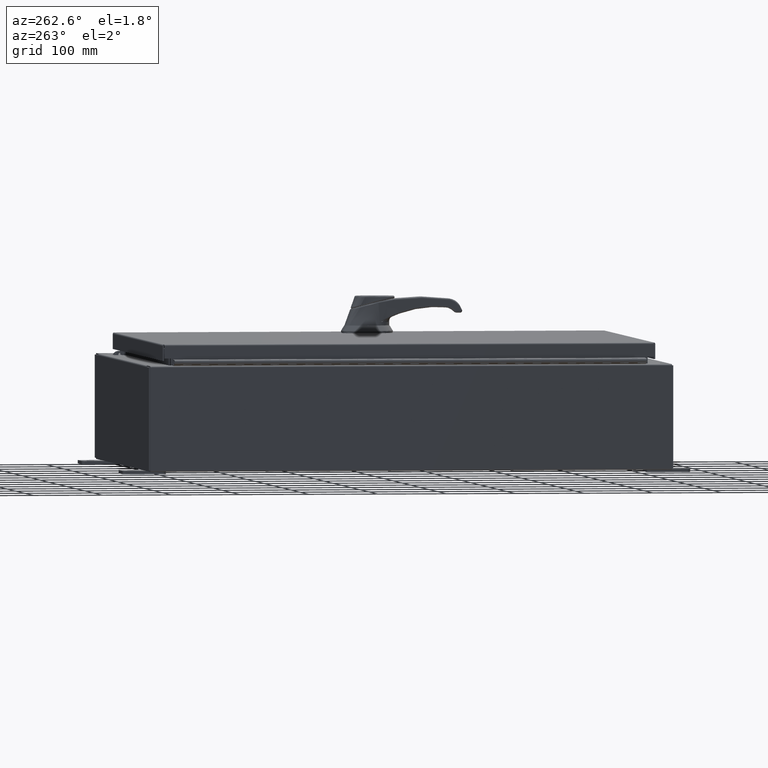
[diagram: clean part render]
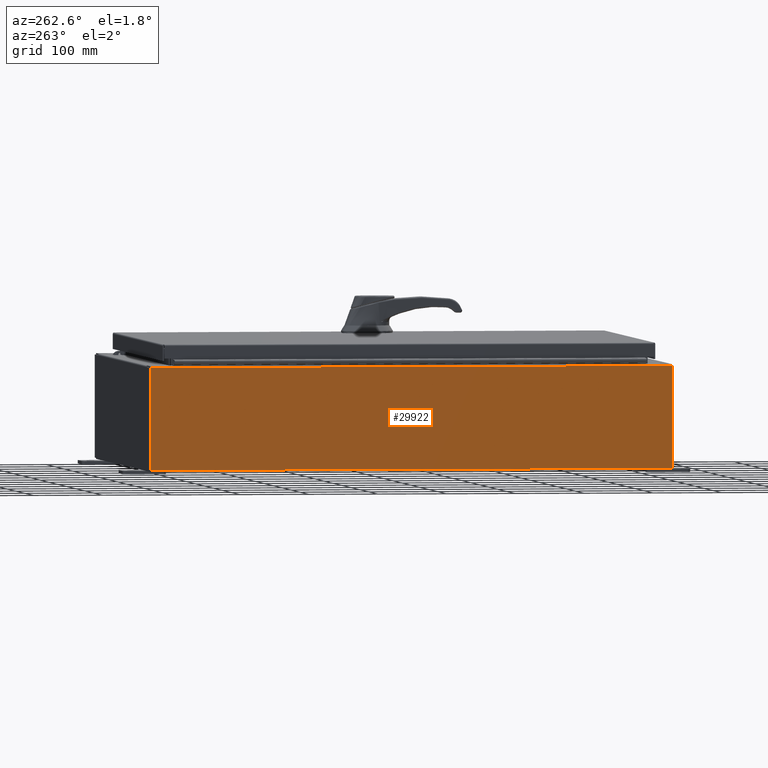
[diagram: same view with one face highlighted and labeled with its STEP entity id]
A machine part, auxiliary view. The second image highlights one B-rep face of the part: STEP entity #29922.
In plain terms, the highlighted planar face has unit normal (1, 0, 0).
Its self-contained STEP definition (entity closure, byte-faithful):
#2544 = ORIENTED_EDGE ( 'NONE', *, *, #102063, .T. ) ;
#2988 = DIRECTION ( 'NONE',  ( -3.319545939341922800E-015, 0.0000000000000000000, 1.000000000000000000 ) ) ;
#7461 = CARTESIAN_POINT ( 'NONE',  ( -12.00000000000000500, 14.92530000000000000, 0.01299999999999985900 ) ) ;
#15256 = EDGE_LOOP ( 'NONE', ( #2544, #74918, #33883, #83857 ) ) ;
#15650 = VECTOR ( 'NONE', #79395, 39.37007874015748100 ) ;
#16144 = LINE ( 'NONE', #81267, #40575 ) ;
#19406 = VERTEX_POINT ( 'NONE', #92842 ) ;
#21424 = LINE ( 'NONE', #76102, #40081 ) ;
#21817 = DIRECTION ( 'NONE',  ( 1.000000000000000000, 0.0000000000000000000, 3.319545939341922800E-015 ) ) ;
#29922 = ADVANCED_FACE ( 'NONE', ( #73078 ), #103814, .F. ) ;
#32175 = EDGE_CURVE ( 'NONE', #19406, #48003, #113029, .T. ) ;
#33421 = CARTESIAN_POINT ( 'NONE',  ( -12.00000000000000500, 14.92530000000000000, 0.01299999999999986400 ) ) ;
#33883 = ORIENTED_EDGE ( 'NONE', *, *, #32175, .F. ) ;
#34235 = CARTESIAN_POINT ( 'NONE',  ( -12.00000000000002500, -14.92530000000000000, 5.837599999999999200 ) ) ;
#39752 = DIRECTION ( 'NONE',  ( 0.0000000000000000000, 1.000000000000000000, 0.0000000000000000000 ) ) ;
#40081 = VECTOR ( 'NONE', #39752, 39.37007874015748100 ) ;
#40575 = VECTOR ( 'NONE', #90515, 39.37007874015748100 ) ;
#47262 = VECTOR ( 'NONE', #2988, 39.37007874015748100 ) ;
#48003 = VERTEX_POINT ( 'NONE', #7461 ) ;
#66603 = CARTESIAN_POINT ( 'NONE',  ( -12.00000000000000500, -14.92530000000000000, -4.009536492811466100E-014 ) ) ;
#71199 = VERTEX_POINT ( 'NONE', #83330 ) ;
#73078 = FACE_OUTER_BOUND ( 'NONE', #15256, .T. ) ;
#74918 = ORIENTED_EDGE ( 'NONE', *, *, #88016, .T. ) ;
#75440 = CARTESIAN_POINT ( 'NONE',  ( -12.00000000000000500, 0.0000000000000000000, -4.009536492811466100E-014 ) ) ;
#76102 = CARTESIAN_POINT ( 'NONE',  ( -12.00000000000002500, -14.92530000000000000, 5.837599999999999200 ) ) ;
#77679 = VERTEX_POINT ( 'NONE', #34235 ) ;
#79395 = DIRECTION ( 'NONE',  ( -0.0000000000000000000, 1.000000000000000000, -0.0000000000000000000 ) ) ;
#81267 = CARTESIAN_POINT ( 'NONE',  ( -12.00000000000000500, 14.92530000000000000, -4.009536492811466100E-014 ) ) ;
#83330 = CARTESIAN_POINT ( 'NONE',  ( -12.00000000000002500, 14.92530000000000000, 5.837599999999999200 ) ) ;
#83857 = ORIENTED_EDGE ( 'NONE', *, *, #93261, .T. ) ;
#85860 = DIRECTION ( 'NONE',  ( 3.319545939341922800E-015, 0.0000000000000000000, -1.000000000000000000 ) ) ;
#88016 = EDGE_CURVE ( 'NONE', #71199, #48003, #16144, .T. ) ;
#90515 = DIRECTION ( 'NONE',  ( 3.319545939341922800E-015, 0.0000000000000000000, -1.000000000000000000 ) ) ;
#92842 = CARTESIAN_POINT ( 'NONE',  ( -12.00000000000000500, -14.92530000000000000, 0.01299999999999986400 ) ) ;
#93261 = EDGE_CURVE ( 'NONE', #19406, #77679, #95930, .T. ) ;
#95930 = LINE ( 'NONE', #66603, #47262 ) ;
#101833 = AXIS2_PLACEMENT_3D ( 'NONE', #75440, #21817, #85860 ) ;
#102063 = EDGE_CURVE ( 'NONE', #77679, #71199, #21424, .T. ) ;
#103814 = PLANE ( 'NONE',  #101833 ) ;
#113029 = LINE ( 'NONE', #33421, #15650 ) ;